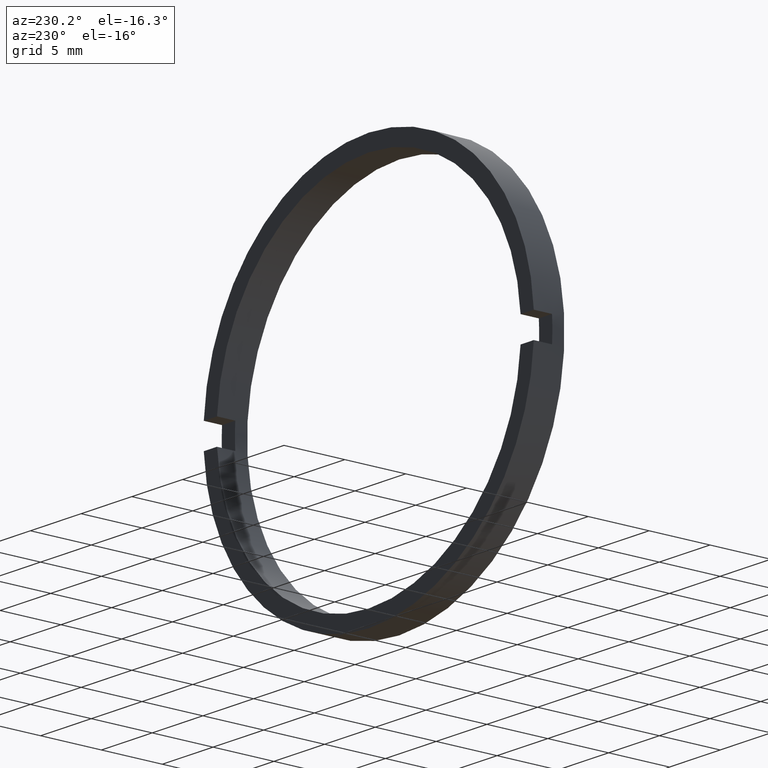
[diagram: clean part render]
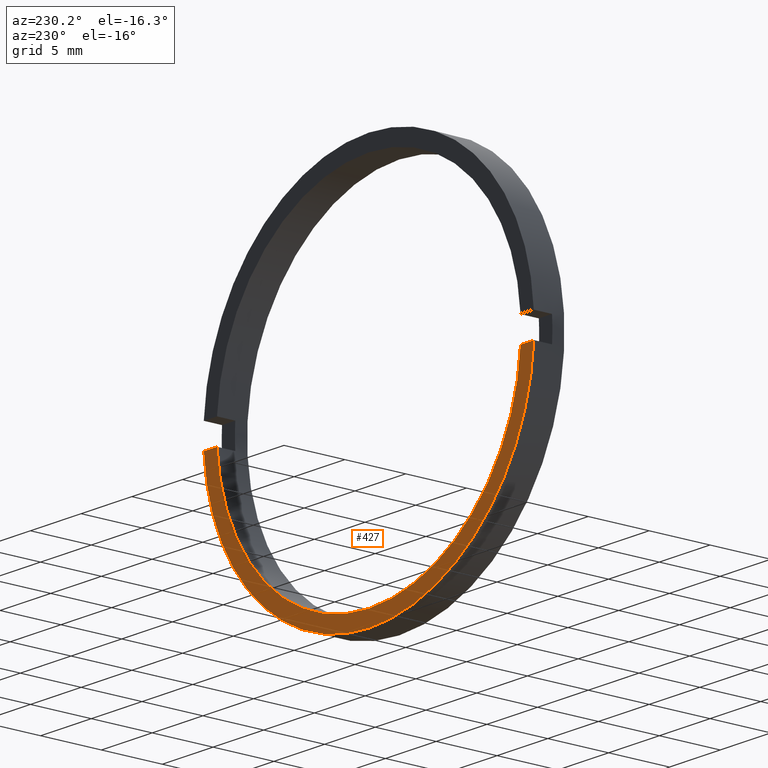
[diagram: same view with one face highlighted and labeled with its STEP entity id]
A machine part, auxiliary view. The second image highlights one B-rep face of the part: STEP entity #427.
In plain terms, the highlighted planar face has unit normal (0, -1, 0).
Its self-contained STEP definition (entity closure, byte-faithful):
#3 = CIRCLE ( 'NONE', #36, 15.00000000000000700 ) ;
#4 = ORIENTED_EDGE ( 'NONE', *, *, #80, .T. ) ;
#12 = CARTESIAN_POINT ( 'NONE',  ( 0.0000000000000000000, -1.964249787179434000, 0.0000000000000000000 ) ) ;
#25 = FACE_OUTER_BOUND ( 'NONE', #274, .T. ) ;
#29 = DIRECTION ( 'NONE',  ( -1.000000000000000000, -0.0000000000000000000, -0.0000000000000000000 ) ) ;
#36 = AXIS2_PLACEMENT_3D ( 'NONE', #264, #449, #64 ) ;
#60 = AXIS2_PLACEMENT_3D ( 'NONE', #343, #107, #416 ) ;
#64 = DIRECTION ( 'NONE',  ( 0.0000000000000000000, 0.0000000000000000000, 1.000000000000000000 ) ) ;
#80 = EDGE_CURVE ( 'NONE', #279, #143, #460, .T. ) ;
#85 = CARTESIAN_POINT ( 'NONE',  ( -26.85254027261461800, -1.964249787179430900, -1.000000000000000000 ) ) ;
#92 = DIRECTION ( 'NONE',  ( -0.0000000000000000000, 1.000000000000000000, -0.0000000000000000000 ) ) ;
#93 = DIRECTION ( 'NONE',  ( 0.0000000000000000000, 0.0000000000000000000, 1.000000000000000000 ) ) ;
#107 = DIRECTION ( 'NONE',  ( 0.0000000000000000000, -1.000000000000000000, 0.0000000000000000000 ) ) ;
#126 = ORIENTED_EDGE ( 'NONE', *, *, #442, .T. ) ;
#135 = CARTESIAN_POINT ( 'NONE',  ( 0.0000000000000000000, -1.964249787179434000, 0.0000000000000000000 ) ) ;
#139 = CARTESIAN_POINT ( 'NONE',  ( 14.96662954709577100, -1.964249787179434000, -0.9999999999999995600 ) ) ;
#142 = ORIENTED_EDGE ( 'NONE', *, *, #319, .F. ) ;
#143 = VERTEX_POINT ( 'NONE', #324 ) ;
#149 = EDGE_CURVE ( 'NONE', #506, #395, #358, .T. ) ;
#153 = CIRCLE ( 'NONE', #480, 16.30000000000000800 ) ;
#181 = CARTESIAN_POINT ( 'NONE',  ( 1.996174282610186800E-015, -1.964249787179434000, -16.30000000000000800 ) ) ;
#188 = EDGE_CURVE ( 'NONE', #251, #280, #428, .T. ) ;
#189 = LINE ( 'NONE', #226, #202 ) ;
#193 = ORIENTED_EDGE ( 'NONE', *, *, #342, .F. ) ;
#202 = VECTOR ( 'NONE', #29, 1000.000000000000000 ) ;
#206 = DIRECTION ( 'NONE',  ( 0.0000000000000000000, 0.0000000000000000000, 1.000000000000000000 ) ) ;
#219 = CARTESIAN_POINT ( 'NONE',  ( -14.96662954709577100, -1.964249787179434000, -0.9999999999999995600 ) ) ;
#226 = CARTESIAN_POINT ( 'NONE',  ( -26.85254027261461800, -1.964249787179430900, -1.000000000000000000 ) ) ;
#233 = CARTESIAN_POINT ( 'NONE',  ( 16.26929623554749300, -1.964249787179430900, -1.000000000000000000 ) ) ;
#251 = VERTEX_POINT ( 'NONE', #444 ) ;
#264 = CARTESIAN_POINT ( 'NONE',  ( 0.0000000000000000000, -1.964249787179434000, 0.0000000000000000000 ) ) ;
#267 = PLANE ( 'NONE',  #60 ) ;
#274 = EDGE_LOOP ( 'NONE', ( #126, #4, #193, #311, #142, #355 ) ) ;
#279 = VERTEX_POINT ( 'NONE', #181 ) ;
#280 = VERTEX_POINT ( 'NONE', #219 ) ;
#310 = DIRECTION ( 'NONE',  ( 0.0000000000000000000, 0.0000000000000000000, 1.000000000000000000 ) ) ;
#311 = ORIENTED_EDGE ( 'NONE', *, *, #188, .F. ) ;
#319 = EDGE_CURVE ( 'NONE', #395, #251, #3, .T. ) ;
#324 = CARTESIAN_POINT ( 'NONE',  ( -16.26929623554751100, -1.964249787179430900, -1.000000000000000000 ) ) ;
#342 = EDGE_CURVE ( 'NONE', #280, #143, #189, .T. ) ;
#343 = CARTESIAN_POINT ( 'NONE',  ( 15.00000000000000700, -1.964249787179430900, 0.0000000000000000000 ) ) ;
#355 = ORIENTED_EDGE ( 'NONE', *, *, #149, .F. ) ;
#358 = LINE ( 'NONE', #85, #447 ) ;
#359 = DIRECTION ( 'NONE',  ( -1.000000000000000000, -0.0000000000000000000, -0.0000000000000000000 ) ) ;
#373 = AXIS2_PLACEMENT_3D ( 'NONE', #12, #92, #206 ) ;
#378 = DIRECTION ( 'NONE',  ( -0.0000000000000000000, 1.000000000000000000, -0.0000000000000000000 ) ) ;
#393 = DIRECTION ( 'NONE',  ( -0.0000000000000000000, 1.000000000000000000, -0.0000000000000000000 ) ) ;
#395 = VERTEX_POINT ( 'NONE', #139 ) ;
#416 = DIRECTION ( 'NONE',  ( 0.0000000000000000000, -0.0000000000000000000, -1.000000000000000000 ) ) ;
#427 = ADVANCED_FACE ( 'NONE', ( #25 ), #267, .F. ) ;
#428 = CIRCLE ( 'NONE', #443, 15.00000000000000700 ) ;
#442 = EDGE_CURVE ( 'NONE', #506, #279, #153, .T. ) ;
#443 = AXIS2_PLACEMENT_3D ( 'NONE', #135, #378, #93 ) ;
#444 = CARTESIAN_POINT ( 'NONE',  ( 1.836970198721030800E-015, -1.964249787179434000, -15.00000000000000700 ) ) ;
#447 = VECTOR ( 'NONE', #359, 1000.000000000000000 ) ;
#448 = CARTESIAN_POINT ( 'NONE',  ( 0.0000000000000000000, -1.964249787179434000, 0.0000000000000000000 ) ) ;
#449 = DIRECTION ( 'NONE',  ( -0.0000000000000000000, 1.000000000000000000, -0.0000000000000000000 ) ) ;
#460 = CIRCLE ( 'NONE', #373, 16.30000000000000800 ) ;
#480 = AXIS2_PLACEMENT_3D ( 'NONE', #448, #393, #310 ) ;
#506 = VERTEX_POINT ( 'NONE', #233 ) ;